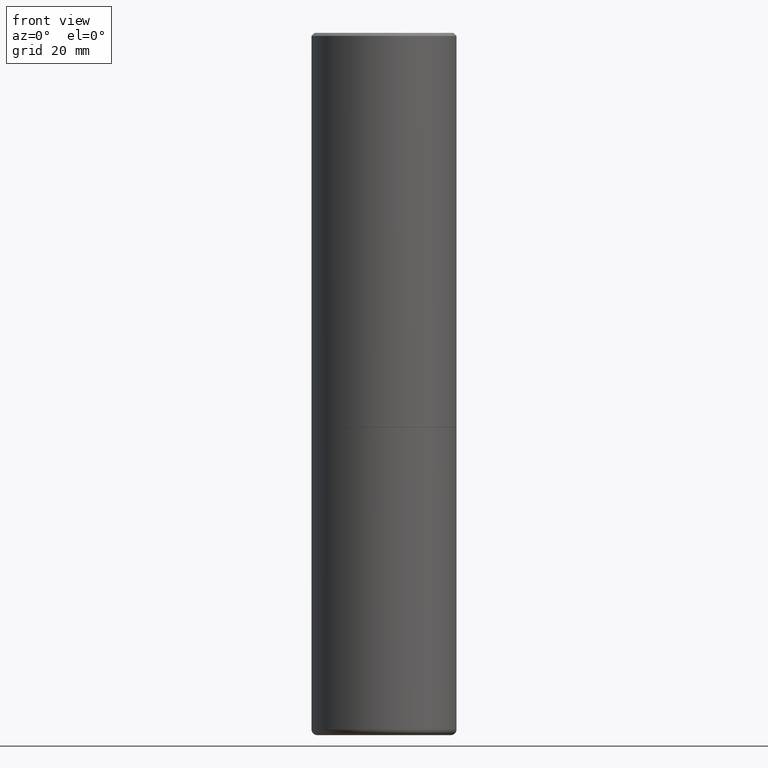
[diagram: clean part render]
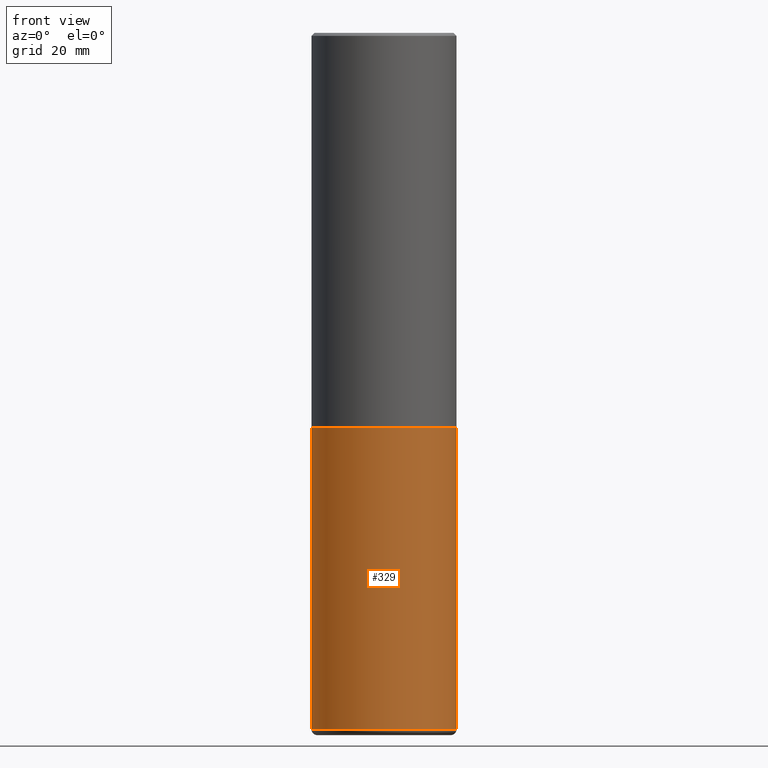
[diagram: same view with one face highlighted and labeled with its STEP entity id]
A machine part, front view. The second image highlights one B-rep face of the part: STEP entity #329.
In plain terms, the highlighted cylindrical surface (partial cylindrical patch) has radius 12.5006 mm, axis along (-0, 0, 1).
Its self-contained STEP definition (entity closure, byte-faithful):
#4 = FACE_OUTER_BOUND ( 'NONE', #144, .T. ) ;
#23 = CARTESIAN_POINT ( 'NONE',  ( -0.4921499999999999764, -1.299821836318722241E-14, -4.724399999999999267 ) ) ;
#31 = VERTEX_POINT ( 'NONE', #135 ) ;
#49 = VECTOR ( 'NONE', #297, 39.37007874015748143 ) ;
#51 = DIRECTION ( 'NONE',  ( -2.445468806185136597E-29, 3.491481338843145583E-15, 1.000000000000000000 ) ) ;
#52 = DIRECTION ( 'NONE',  ( 1.000000000000000000, -6.982962677686261977E-15, 0.000000000000000000 ) ) ;
#71 = AXIS2_PLACEMENT_3D ( 'NONE', #210, #51, #52 ) ;
#74 = EDGE_CURVE ( 'NONE', #330, #81, #326, .T. ) ;
#76 = CARTESIAN_POINT ( 'NONE',  ( 0.000000000000000000, 0.000000000000000000, 0.000000000000000000 ) ) ;
#81 = VERTEX_POINT ( 'NONE', #294 ) ;
#82 = DIRECTION ( 'NONE',  ( 1.000000000000000000, -6.982962677686265922E-15, 0.000000000000000000 ) ) ;
#86 = CARTESIAN_POINT ( 'NONE',  ( 0.4921499999999999764, -3.436665081823295777E-15, 2.399810400207969603E-29 ) ) ;
#93 = AXIS2_PLACEMENT_3D ( 'NONE', #76, #129, #201 ) ;
#109 = CYLINDRICAL_SURFACE ( 'NONE', #93, 0.4921499999999999764 ) ;
#114 = LINE ( 'NONE', #86, #120 ) ;
#118 = CARTESIAN_POINT ( 'NONE',  ( -0.4921499999999999764, -9.424338064747378311E-15, -2.677199999999999580 ) ) ;
#120 = VECTOR ( 'NONE', #345, 39.37007874015748143 ) ;
#129 = DIRECTION ( 'NONE',  ( -2.445468806185136597E-29, 3.491481338843145583E-15, 1.000000000000000000 ) ) ;
#131 = EDGE_CURVE ( 'NONE', #31, #81, #114, .T. ) ;
#135 = CARTESIAN_POINT ( 'NONE',  ( 0.4921499999999999764, -1.993181951905385030E-14, -4.724399999999999267 ) ) ;
#136 = EDGE_CURVE ( 'NONE', #408, #31, #176, .T. ) ;
#138 = LINE ( 'NONE', #169, #49 ) ;
#144 = EDGE_LOOP ( 'NONE', ( #318, #184, #418, #319 ) ) ;
#169 = CARTESIAN_POINT ( 'NONE',  ( -0.4921499999999999764, 3.496936074043332897E-15, -2.420853904668951509E-29 ) ) ;
#176 = CIRCLE ( 'NONE', #71, 0.4921499999999999764 ) ;
#184 = ORIENTED_EDGE ( 'NONE', *, *, #136, .T. ) ;
#201 = DIRECTION ( 'NONE',  ( 1.000000000000000000, -6.982962677686265922E-15, 4.876176775795935793E-29 ) ) ;
#210 = CARTESIAN_POINT ( 'NONE',  ( 1.155337282794105951E-28, -1.649515443723055610E-14, -4.724399999999999267 ) ) ;
#235 = DIRECTION ( 'NONE',  ( -2.445468806185136597E-29, 3.491481338843145583E-15, 1.000000000000000000 ) ) ;
#237 = EDGE_CURVE ( 'NONE', #408, #330, #138, .T. ) ;
#294 = CARTESIAN_POINT ( 'NONE',  ( 0.4921499999999999764, -1.278405892217416209E-14, -2.677199999999999580 ) ) ;
#297 = DIRECTION ( 'NONE',  ( -2.445468806185136877E-29, 3.491481338843145188E-15, 1.000000000000000000 ) ) ;
#318 = ORIENTED_EDGE ( 'NONE', *, *, #237, .F. ) ;
#319 = ORIENTED_EDGE ( 'NONE', *, *, #74, .F. ) ;
#326 = CIRCLE ( 'NONE', #371, 0.4921499999999999764 ) ;
#329 = ADVANCED_FACE ( 'NONE', ( #4 ), #109, .T. ) ;
#330 = VERTEX_POINT ( 'NONE', #118 ) ;
#345 = DIRECTION ( 'NONE',  ( -2.445468806185136877E-29, 3.491481338843145188E-15, 1.000000000000000000 ) ) ;
#358 = CARTESIAN_POINT ( 'NONE',  ( 6.547009087918846705E-29, -9.347393840350866318E-15, -2.677199999999999580 ) ) ;
#371 = AXIS2_PLACEMENT_3D ( 'NONE', #358, #235, #82 ) ;
#408 = VERTEX_POINT ( 'NONE', #23 ) ;
#418 = ORIENTED_EDGE ( 'NONE', *, *, #131, .T. ) ;